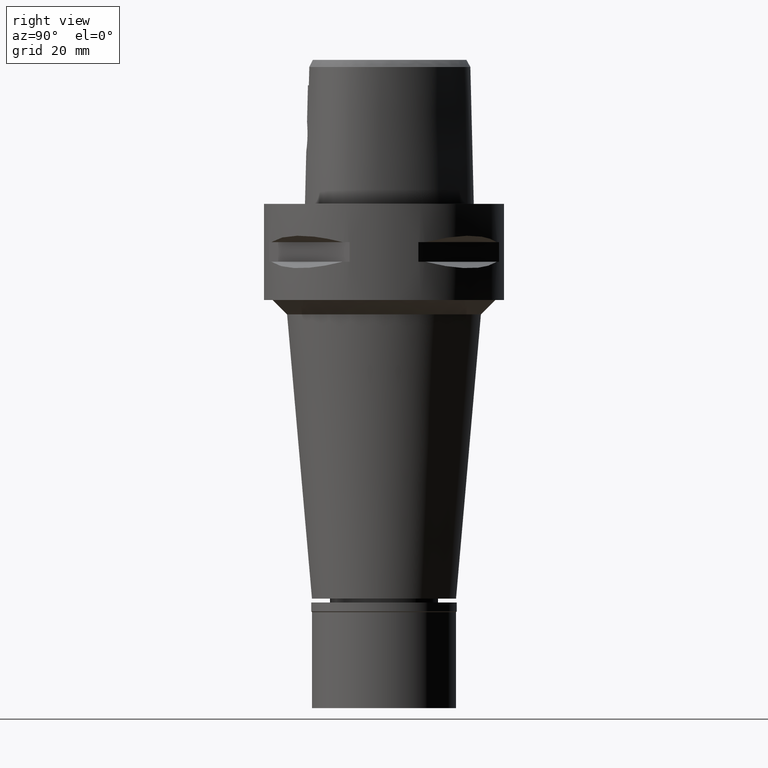
[diagram: clean part render]
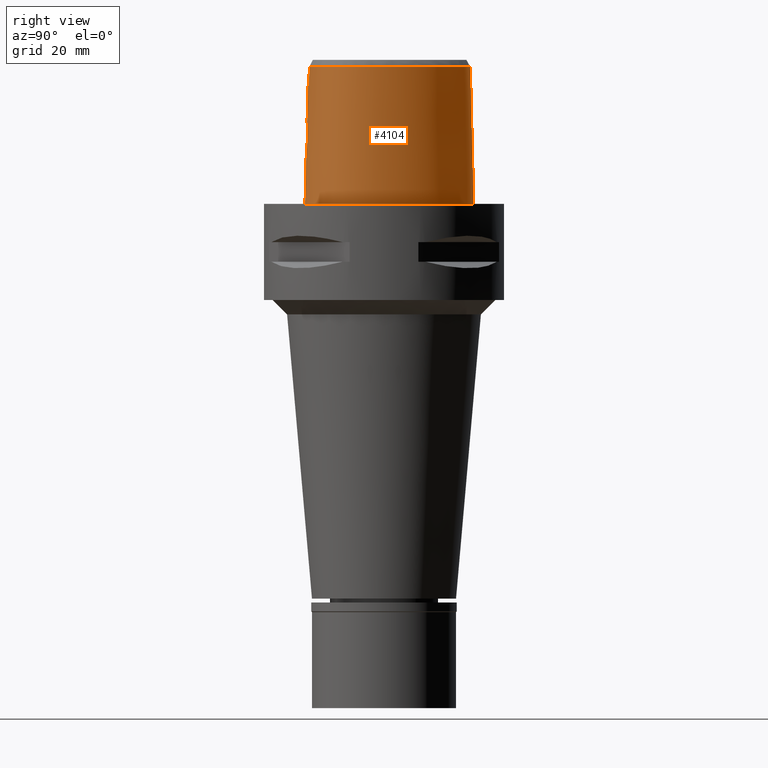
[diagram: same view with one face highlighted and labeled with its STEP entity id]
A machine part, right view. The second image highlights one B-rep face of the part: STEP entity #4104.
In plain terms, the highlighted face is a freeform B-spline surface patch.
Its self-contained STEP definition (entity closure, byte-faithful):
#17 = CARTESIAN_POINT ( 'NONE',  ( 7.523733068098778176, 15.26501041874221798, 28.52071728562186337 ) ) ;
#34 = CARTESIAN_POINT ( 'NONE',  ( 16.01658383235305649, -8.155509186612102113, 28.52071728562186337 ) ) ;
#48 = CARTESIAN_POINT ( 'NONE',  ( 14.38008123442372366, 8.302343771663288408, -1.724618301223194636E-06 ) ) ;
#63 = ORIENTED_EDGE ( 'NONE', *, *, #4113, .T. ) ;
#66 = CARTESIAN_POINT ( 'NONE',  ( 16.47905536661404469, -6.962316254603452492, 28.52071728562186337 ) ) ;
#77 = CARTESIAN_POINT ( 'NONE',  ( 4.728927225346569507, 17.73480472691698395, -1.724618301223194636E-06 ) ) ;
#78 = CARTESIAN_POINT ( 'NONE',  ( 2.030224829794000080E-07, -15.83752876601000281, 24.70000006102999990 ) ) ;
#86 = CARTESIAN_POINT ( 'NONE',  ( 2.223227574825758612, -16.06911398227905252, 11.90960399256272950 ) ) ;
#99 = CARTESIAN_POINT ( 'NONE',  ( 13.50690096153880226, -12.48264651843017958, -1.724618301223194636E-06 ) ) ;
#105 = EDGE_CURVE ( 'NONE', #4385, #2100, #3793, .T. ) ;
#109 = CARTESIAN_POINT ( 'NONE',  ( 2.744096643855138851, -16.00346064512361366, 12.66698413766678399 ) ) ;
#115 = CARTESIAN_POINT ( 'NONE',  ( 7.668807702280000527, 15.44980313097000035, 19.20396166236000113 ) ) ;
#134 = CARTESIAN_POINT ( 'NONE',  ( 2.164021906619612690, -15.96736812113674198, 16.14931344321803408 ) ) ;
#160 = CARTESIAN_POINT ( 'NONE',  ( 2.957688824804170835, -15.96752846870872311, 13.22897551199208266 ) ) ;
#183 = CARTESIAN_POINT ( 'NONE',  ( 3.048883421515427017, -15.94046337244652278, 13.90502257973828826 ) ) ;
#194 = EDGE_CURVE ( 'NONE', #3218, #1189, #847, .T. ) ;
#195 = CARTESIAN_POINT ( 'NONE',  ( -1.060560759004000264, -15.70738087652999759, 29.09114984497000123 ) ) ;
#258 = CARTESIAN_POINT ( 'NONE',  ( 3.213444788215948034, -15.61774735051721308, 25.97357128944999971 ) ) ;
#259 = CARTESIAN_POINT ( 'NONE',  ( 0.7741482008191981068, -16.02257322970520903, 16.98085959781949583 ) ) ;
#271 = CARTESIAN_POINT ( 'NONE',  ( 1.321318946929999960, -16.50155084630999980, -0.5704147028425000654 ) ) ;
#298 = CARTESIAN_POINT ( 'NONE',  ( 16.84071406257000092, -5.352498112783000472, 29.09114984497000123 ) ) ;
#309 = CARTESIAN_POINT ( 'NONE',  ( 3.235096591086000117, -15.64751801257999908, 24.70000006080999810 ) ) ;
#321 = CARTESIAN_POINT ( 'NONE',  ( 11.47659488514999993, 12.46143684857999823, -0.5704147028425000654 ) ) ;
#339 = CARTESIAN_POINT ( 'NONE',  ( 0.7748558813738485318, -16.16821842566323042, 11.04831638025738094 ) ) ;
#347 = CARTESIAN_POINT ( 'NONE',  ( 16.70311416019000106, -7.028822871959999219, 19.20396166236000113 ) ) ;
#371 = CARTESIAN_POINT ( 'NONE',  ( 16.00353252384999792, -8.149703169336001807, 29.09114984497000123 ) ) ;
#392 = CARTESIAN_POINT ( 'NONE',  ( -3.094715185645000153E-11, 17.98202997909999823, 28.52071728569000086 ) ) ;
#397 = EDGE_LOOP ( 'NONE', ( #4863, #63, #4188, #2389, #3815, #3223, #2821, #4850 ) ) ;
#399 = CARTESIAN_POINT ( 'NONE',  ( 13.51574691277999918, -12.49390941291999901, -0.5704147028425000654 ) ) ;
#422 = CARTESIAN_POINT ( 'NONE',  ( -0.5593289285082000406, 18.44521839148999831, 9.316773479760998455 ) ) ;
#442 = CARTESIAN_POINT ( 'NONE',  ( 3.168920890822999770, -15.55911073834000113, 28.52071374672999582 ) ) ;
#453 = CARTESIAN_POINT ( 'NONE',  ( 17.71143739886225532, -3.269218749718620032, -1.724618301223194636E-06 ) ) ;
#464 = CARTESIAN_POINT ( 'NONE',  ( 2.290593162244019432, -16.06186194956425695, 11.98364703425943922 ) ) ;
#470 = CARTESIAN_POINT ( 'NONE',  ( 4.522582258244999487, 17.29581182527999772, 19.20396166236000113 ) ) ;
#480 = CARTESIAN_POINT ( 'NONE',  ( 7.243258786746999801E-11, 18.69499999997999851, 1.586138627847999922E-13 ) ) ;
#490 = CARTESIAN_POINT ( 'NONE',  ( 2.824468722466983994, -15.93300016794371743, 15.15105085638156979 ) ) ;
#514 = CARTESIAN_POINT ( 'NONE',  ( 2.180887052763810452, -15.96648089881371924, 16.13220278528723739 ) ) ;
#519 = CARTESIAN_POINT ( 'NONE',  ( 0.4640361004274000112, 18.23425881035000273, 19.20396166236000113 ) ) ;
#537 = CARTESIAN_POINT ( 'NONE',  ( 1.138812104615271270, -16.15267061231297774, 11.17057442770730802 ) ) ;
#545 = CARTESIAN_POINT ( 'NONE',  ( 2.169052010910569095, -15.77399788591356966, 24.70000016056458847 ) ) ;
#563 = CARTESIAN_POINT ( 'NONE',  ( 3.014162081768897217, -15.95399573205361499, 13.52323755265707383 ) ) ;
#671 = CARTESIAN_POINT ( 'NONE',  ( 8.866858737861999629, -14.81887819209000057, 9.316773479760998455 ) ) ;
#695 = CARTESIAN_POINT ( 'NONE',  ( 17.02224575236000348, -0.3128848874917000145, 19.20396166236000113 ) ) ;
#722 = CARTESIAN_POINT ( 'NONE',  ( 16.94089129480000011, -7.099401458301999313, 9.316773479760998455 ) ) ;
#746 = CARTESIAN_POINT ( 'NONE',  ( 5.009809421125999584, -15.92506881227000193, 9.316773479760998455 ) ) ;
#771 = CARTESIAN_POINT ( 'NONE',  ( 15.25987605312999840, -9.930205345762999514, 19.20396166236000113 ) ) ;
#796 = CARTESIAN_POINT ( 'NONE',  ( 0.4897519513809999725, 18.72964555625999949, -0.5704147028425000654 ) ) ;
#818 = CARTESIAN_POINT ( 'NONE',  ( 15.84228676733495256, 3.460033425849442068, 28.52071728562186337 ) ) ;
#835 = CARTESIAN_POINT ( 'NONE',  ( 2.478737183283747036, -16.03986208745244824, 12.22013516386344989 ) ) ;
#847 = B_SPLINE_CURVE_WITH_KNOTS ( 'NONE', 3,
 ( #2245, #1143, #2665, #3769, #339, #2835, #2069, #3563, #3512, #537, #2465, #1993, #3215, #4373, #4723, #4269, #3592, #1672, #2020, #3945, #2761, #888, #3138, #2358, #86, #464, #1623, #835, #4670, #1237, #934, #109, #4648, #3890, #1288, #3539, #160, #563, #2094, #3614, #1215, #183, #4746, #2814, #3996, #3115, #2738, #4295, #1310, #864, #2385, #3921, #490, #4349, #911, #1643, #3160, #4696, #2042, #1262, #2791, #4323, #2411, #514, #2435, #134, #3967, #3193, #1700, #3662, #3633, #2533, #1743, #2509, #956, #2116, #4441, #1002, #259, #4063, #2489 ),
 .UNSPECIFIED., .F., .F.,
 ( 4, 2, 2, 1, 1, 1, 2, 2, 2, 2, 2, 1, 1, 2, 2, 2, 2, 2, 1, 2, 2, 2, 2, 2, 2, 2, 2, 1, 1, 1, 2, 2, 2, 2, 2, 1, 1, 2, 2, 2, 2, 2, 2, 2, 2, 4 ),
 ( 0.0000000000000000000, 0.06250000000000130451, 0.09375000000000192901, 0.1093750000000021511, 0.1171875000000021788, 0.1210937500000021927, 0.1230468750000022066, 0.1250000000000022204, 0.1875000000000036915, 0.2187500000000043021, 0.2343750000000047740, 0.2421875000000052180, 0.2460937500000055789, 0.2480468750000058009, 0.2500000000000059952, 0.2812500000000057176, 0.3125000000000053846, 0.3437500000000051070, 0.3593750000000049960, 0.3671875000000049960, 0.3750000000000049960, 0.4375000000000041078, 0.4687500000000037192, 0.4843750000000037748, 0.5000000000000037748, 0.5625000000000052180, 0.5937500000000058842, 0.6093750000000062172, 0.6171875000000063283, 0.6210937500000066613, 0.6230468750000065503, 0.6250000000000064393, 0.6875000000000034417, 0.7187500000000012212, 0.7343749999999997780, 0.7421874999999994449, 0.7460937499999987788, 0.7480468749999985567, 0.7499999999999982236, 0.7812499999999991118, 0.7968749999999992228, 0.8124999999999993339, 0.8437499999999995559, 0.8593749999999994449, 0.8749999999999992228, 1.000000000000000000 ),
 .UNSPECIFIED. ) ;
#852 = CARTESIAN_POINT ( 'NONE',  ( 16.66912846085714506, -8.445800798803885456, -1.724618301223194636E-06 ) ) ;
#864 = CARTESIAN_POINT ( 'NONE',  ( 2.852909278454572206, -15.93189406616821202, 15.07915126970500097 ) ) ;
#869 = CARTESIAN_POINT ( 'NONE',  ( 8.702202469522539729, -14.36510984286100445, 28.52071728562186337 ) ) ;
#888 = CARTESIAN_POINT ( 'NONE',  ( 2.130834279646585117, -16.07853149005603655, 11.81777582520703263 ) ) ;
#901 = CARTESIAN_POINT ( 'NONE',  ( -3.094715185645000153E-11, 17.98202997909999823, 28.52071728569000086 ) ) ;
#911 = CARTESIAN_POINT ( 'NONE',  ( 2.759961640973294550, -15.93564958624567929, 15.30749493561481955 ) ) ;
#932 = CARTESIAN_POINT ( 'NONE',  ( 6.782386032392523226E-08, -15.90128720080381797, 22.15000025259135086 ) ) ;
#934 = CARTESIAN_POINT ( 'NONE',  ( 2.709953204679840688, -16.00846021379279449, 12.59958595635182732 ) ) ;
#937 = EDGE_CURVE ( 'NONE', #2296, #1189, #4562, .T. ) ;
#956 = CARTESIAN_POINT ( 'NONE',  ( 1.399412083726095268, -16.00233608542867358, 16.71046994217811488 ) ) ;
#998 = CARTESIAN_POINT ( 'NONE',  ( 0.0000000000000000000, -16.02877864023999877, 17.05000000000000071 ) ) ;
#1002 = CARTESIAN_POINT ( 'NONE',  ( 1.217867162102866496, -16.00861105600193568, 16.79681041045230927 ) ) ;
#1049 = CARTESIAN_POINT ( 'NONE',  ( 4.922186775604999731, -15.43572506689999990, 29.09114984497000123 ) ) ;
#1072 = CARTESIAN_POINT ( 'NONE',  ( 16.46533702557000112, -6.958244285616999925, 29.09114984497000123 ) ) ;
#1100 = CARTESIAN_POINT ( 'NONE',  ( 13.05575605748000001, -11.90823712870999884, 29.09114984497000123 ) ) ;
#1128 = CARTESIAN_POINT ( 'NONE',  ( 13.74710206989000127, 7.936918612611998824, 29.09114984497000123 ) ) ;
#1143 = CARTESIAN_POINT ( 'NONE',  ( 0.1898211197318054044, -16.18126839358999902, 10.94999999999999929 ) ) ;
#1149 = CARTESIAN_POINT ( 'NONE',  ( 13.96223223070999886, 8.061115391332000613, 19.20396166236000113 ) ) ;
#1166 = DIRECTION ( 'NONE',  ( 3.623592351940885255E-12, 0.02499051285796925065, -0.9996876883642689116 ) ) ;
#1189 = VERTEX_POINT ( 'NONE', #3495 ) ;
#1201 = CARTESIAN_POINT ( 'NONE',  ( 1.890839651230999952, 17.83402852997999943, 29.09114984497000123 ) ) ;
#1215 = CARTESIAN_POINT ( 'NONE',  ( 3.044506884776513989, -15.94333381584075227, 13.81108558313460932 ) ) ;
#1220 = CARTESIAN_POINT ( 'NONE',  ( -0.5293535088808000166, 17.95181569761000162, 29.09114984497000123 ) ) ;
#1227 = CARTESIAN_POINT ( 'NONE',  ( 1.683697725074135843, -16.45500004311455200, -1.724618301223194636E-06 ) ) ;
#1237 = CARTESIAN_POINT ( 'NONE',  ( 2.638828814099707376, -16.01860464026678699, 12.46732066279884421 ) ) ;
#1244 = CARTESIAN_POINT ( 'NONE',  ( 4.735056264694001094, 17.74784407944000364, -0.5704147028425000654 ) ) ;
#1262 = CARTESIAN_POINT ( 'NONE',  ( 2.320231428406501095, -15.95909571851455588, 15.98050410814319555 ) ) ;
#1265 = B_SPLINE_CURVE_WITH_KNOTS ( 'NONE', 3,
 ( #1682, #545, #2768, #2841 ),
 .UNSPECIFIED., .F., .F.,
 ( 4, 4 ),
 ( 0.0000000000000000000, 1.000000000000000000 ),
 .UNSPECIFIED. ) ;
#1271 = CARTESIAN_POINT ( 'NONE',  ( 1.893775678554993291, 17.84807068954962972, 28.52071728562186337 ) ) ;
#1288 = CARTESIAN_POINT ( 'NONE',  ( 2.806282367902103836, -15.99380854387472084, 12.80500890572250050 ) ) ;
#1310 = CARTESIAN_POINT ( 'NONE',  ( 2.883981873338863799, -15.93080840504316420, 14.99485968243827116 ) ) ;
#1320 = FACE_OUTER_BOUND ( 'NONE', #397, .T. ) ;
#1356 = CARTESIAN_POINT ( 'NONE',  ( 2.030224829794000080E-07, -15.83752876601000281, 24.70000006102999990 ) ) ;
#1396 = CARTESIAN_POINT ( 'NONE',  ( -1.070056060234000128, -15.95437365744999880, 19.20396166236000113 ) ) ;
#1422 = CARTESIAN_POINT ( 'NONE',  ( 15.05961623282999895, -9.784614131452000763, 29.09114984497000123 ) ) ;
#1447 = VERTEX_POINT ( 'NONE', #4477 ) ;
#1449 = CARTESIAN_POINT ( 'NONE',  ( 16.68217932135000225, -8.451606616778001069, -0.5704147028425000654 ) ) ;
#1475 = CARTESIAN_POINT ( 'NONE',  ( 11.28662493320999971, 12.30111480653000022, 9.316773479760998455 ) ) ;
#1489 = B_SPLINE_CURVE_WITH_KNOTS ( 'NONE', 3,
 ( #2722, #3853, #1271, #1950, #17, #4252, #2025, #818, #3468, #1553, #4603, #66, #34, #2344, #3143, #1650, #4302, #1606, #869, #3872, #2000, #442 ),
 .UNSPECIFIED., .F., .F.,
 ( 4, 1, 1, 1, 1, 1, 1, 1, 1, 1, 1, 1, 1, 1, 1, 1, 1, 1, 1, 4 ),
 ( 0.0000000000000000000, 0.04404152929334107652, 0.08808305858551931933, 0.1761661171698760686, 0.2642491757542327901, 0.3523322343385895117, 0.4404152929230518709, 0.5284983515074086480, 0.5725398807995869532, 0.6165814100917652585, 0.6606229393839436748, 0.6826437040300328274, 0.7046644686762276732, 0.7266852333222112437, 0.7487059979683002853, 0.7927475272605843948, 0.8367890565527628111, 0.8808305858448354231, 0.9689136444292978378, 1.000000000000000000 ),
 .UNSPECIFIED. ) ;
#1502 = CARTESIAN_POINT ( 'NONE',  ( 16.29641055957999995, 3.623925452662000168, 9.316773479760998455 ) ) ;
#1532 = CARTESIAN_POINT ( 'NONE',  ( 1.309813751699000051, -16.25411916852999994, 9.316773479760998455 ) ) ;
#1553 = CARTESIAN_POINT ( 'NONE',  ( 16.99625257117350330, -3.273868232427241676, 28.52071728562186337 ) ) ;
#1554 = B_SPLINE_CURVE_WITH_KNOTS ( 'NONE', 3,
 ( #1957, #1227, #2708, #4237, #2329, #99, #3860, #3478, #3957, #852, #4284, #3880, #453, #3910, #2032, #48, #1634, #1982, #77, #1615, #2751, #480 ),
 .UNSPECIFIED., .F., .F.,
 ( 4, 1, 1, 1, 1, 1, 1, 1, 1, 1, 1, 1, 1, 1, 1, 1, 1, 1, 1, 4 ),
 ( 0.0000000000000000000, 0.08333333333350000094, 0.1666666666668000230, 0.2083333333333000081, 0.2499999999998999967, 0.2916666666666000163, 0.3124999999998999689, 0.3333333333331000015, 0.3541666666665000407, 0.3749999999997999933, 0.4166666666664000096, 0.4583333333330000259, 0.4999999999995999866, 0.5833333333328000192, 0.6666666666660999718, 0.7499999999993000044, 0.8333333333325000369, 0.9166666666657000695, 0.9583333333322999747, 1.000000000000000000 ),
 .UNSPECIFIED. ) ;
#1580 = CARTESIAN_POINT ( 'NONE',  ( -0.5443412186945000286, 18.19851704455000174, 19.20396166236000113 ) ) ;
#1606 = CARTESIAN_POINT ( 'NONE',  ( 11.33338046474217542, -13.08225241901945068, 28.52071728562186337 ) ) ;
#1615 = CARTESIAN_POINT ( 'NONE',  ( 2.040572366544298522, 18.55015629245400888, -1.724618301223194636E-06 ) ) ;
#1623 = CARTESIAN_POINT ( 'NONE',  ( 2.417729193041641800, -16.04731727844026068, 12.13798983179896496 ) ) ;
#1628 = CARTESIAN_POINT ( 'NONE',  ( 7.822764751994001564, 15.64591005858999928, 9.316773479760998455 ) ) ;
#1634 = CARTESIAN_POINT ( 'NONE',  ( 11.46563511336675667, 12.45218752796509243, -1.724618301223194636E-06 ) ) ;
#1643 = CARTESIAN_POINT ( 'NONE',  ( 2.681016418395048895, -15.93974068711152547, 15.46783011061541124 ) ) ;
#1650 = CARTESIAN_POINT ( 'NONE',  ( 14.26907046692866565, -10.79012245165629835, 28.52071728562186337 ) ) ;
#1672 = CARTESIAN_POINT ( 'NONE',  ( 1.979050802164313616, -16.09313883417900826, 11.67852903116636298 ) ) ;
#1682 = CARTESIAN_POINT ( 'NONE',  ( 3.235096591086000117, -15.64751801257999908, 24.70000006080999810 ) ) ;
#1694 = CARTESIAN_POINT ( 'NONE',  ( -2.152758532514000202E-12, -16.18126839358999902, 10.94999999999999929 ) ) ;
#1700 = CARTESIAN_POINT ( 'NONE',  ( 1.898958778535287273, -15.98067541706732086, 16.38724889510308458 ) ) ;
#1743 = CARTESIAN_POINT ( 'NONE',  ( 1.616099766049513997, -15.99381337938742043, 16.58846643699800083 ) ) ;
#1781 = CARTESIAN_POINT ( 'NONE',  ( -0.7201291708170999284, -16.21519147593999932, 9.316773479760998455 ) ) ;
#1790 = CARTESIAN_POINT ( 'NONE',  ( 3.168920890822999770, -15.55911073834000113, 28.52071374672999582 ) ) ;
#1828 = CARTESIAN_POINT ( 'NONE',  ( 14.79871907724000124, -11.29217324072999951, -0.5704147028425000654 ) ) ;
#1839 = CARTESIAN_POINT ( 'NONE',  ( 3.191384142201736829, -15.58827398948734633, 27.24714251809000132 ) ) ;
#1853 = CARTESIAN_POINT ( 'NONE',  ( 8.697311531623999059, -14.35163114059999856, 29.09114984497000123 ) ) ;
#1874 = CARTESIAN_POINT ( 'NONE',  ( 17.72574106026000251, -3.269125760292999949, -0.5704147028425000654 ) ) ;
#1901 = CARTESIAN_POINT ( 'NONE',  ( 15.82879750701999733, 3.455165188926000219, 29.09114984497000123 ) ) ;
#1928 = CARTESIAN_POINT ( 'NONE',  ( 11.57144729116999926, -13.50085884013999937, 9.316773479760998455 ) ) ;
#1944 = EDGE_CURVE ( 'NONE', #3980, #1949, #3346, .T. ) ;
#1949 = VERTEX_POINT ( 'NONE', #2558 ) ;
#1950 = CARTESIAN_POINT ( 'NONE',  ( 4.422474504765952830, 17.08283549832817982, 28.52071728562186337 ) ) ;
#1957 = CARTESIAN_POINT ( 'NONE',  ( -1.728596458623000130E-11, -16.45500000000000185, 1.597610932435999867E-13 ) ) ;
#1970 = CARTESIAN_POINT ( 'NONE',  ( 2.043508293087999750, 18.56419797000000216, -0.5704147028425000654 ) ) ;
#1982 = CARTESIAN_POINT ( 'NONE',  ( 7.967839691079166897, 15.83070315920801008, -1.724618301223194636E-06 ) ) ;
#1993 = CARTESIAN_POINT ( 'NONE',  ( 1.158353828547513453, -16.15167258786865645, 11.17852165137640164 ) ) ;
#1997 = VECTOR ( 'NONE', #3479, 1000.000000000000114 ) ;
#2000 = CARTESIAN_POINT ( 'NONE',  ( 3.738627708318999598, -15.49270856215482084, 28.52071728562186692 ) ) ;
#2020 = CARTESIAN_POINT ( 'NONE',  ( 2.044225401078200832, -16.08701963945068769, 11.73626748626128347 ) ) ;
#2025 = CARTESIAN_POINT ( 'NONE',  ( 13.75951381385227990, 7.944084035686747924, 28.52071728562186337 ) ) ;
#2032 = CARTESIAN_POINT ( 'NONE',  ( 16.51672828858815834, 3.703437514718491030, -1.724618301223194636E-06 ) ) ;
#2042 = CARTESIAN_POINT ( 'NONE',  ( 2.356615372638827477, -15.95714923954085940, 15.93698914121856625 ) ) ;
#2048 = CARTESIAN_POINT ( 'NONE',  ( 0.4511781749506000305, 17.98656543738999858, 29.09114984497000123 ) ) ;
#2069 = CARTESIAN_POINT ( 'NONE',  ( 0.9939297242848635916, -16.15959612542590662, 11.11569146158246291 ) ) ;
#2094 = CARTESIAN_POINT ( 'NONE',  ( 3.027798455715707604, -15.95003164277662400, 13.62032956274717144 ) ) ;
#2100 = VERTEX_POINT ( 'NONE', #4516 ) ;
#2109 = CARTESIAN_POINT ( 'NONE',  ( 3.235096591086000117, -15.64751801257999908, 24.70000006080999810 ) ) ;
#2116 = CARTESIAN_POINT ( 'NONE',  ( 1.354452607727718361, -16.00396228356806816, 16.73322745257438271 ) ) ;
#2198 = CARTESIAN_POINT ( 'NONE',  ( 13.36241662768000005, -12.29868531818000044, 9.316773479760998455 ) ) ;
#2225 = CARTESIAN_POINT ( 'NONE',  ( 16.53021708585999860, 3.708305584531000232, -0.5704147028425000654 ) ) ;
#2245 = CARTESIAN_POINT ( 'NONE',  ( -2.152758532514000202E-12, -16.18126839358999902, 10.94999999999999929 ) ) ;
#2250 = CARTESIAN_POINT ( 'NONE',  ( 17.26695536895999794, -0.2694874701691999941, 9.316773479760998455 ) ) ;
#2251 = EDGE_CURVE ( 'NONE', #3218, #1447, #3151, .T. ) ;
#2273 = CARTESIAN_POINT ( 'NONE',  ( 16.00394172253000136, -9.239880061256000587, 9.316773479760998455 ) ) ;
#2296 = VERTEX_POINT ( 'NONE', #78 ) ;
#2301 = CARTESIAN_POINT ( 'NONE',  ( 16.21839714803000021, -9.363695959260001089, -0.5704147028425000654 ) ) ;
#2322 = CARTESIAN_POINT ( 'NONE',  ( -0.3630721077461999680, 18.20950138894999881, 19.20396166236000113 ) ) ;
#2329 = CARTESIAN_POINT ( 'NONE',  ( 11.68694518722046105, -13.70394535008871451, -1.724618301223194636E-06 ) ) ;
#2344 = CARTESIAN_POINT ( 'NONE',  ( 15.58740368722602021, -8.999391713747405319, 28.52071728562186337 ) ) ;
#2358 = CARTESIAN_POINT ( 'NONE',  ( 2.147962331140138126, -16.07679769526339086, 11.83463701146487068 ) ) ;
#2365 = CARTESIAN_POINT ( 'NONE',  ( -0.3829342213874999956, 18.70352949266999687, -0.5704147028425000654 ) ) ;
#2385 = CARTESIAN_POINT ( 'NONE',  ( 2.836520581861626145, -15.93251973351802242, 15.12113420123065488 ) ) ;
#2389 = ORIENTED_EDGE ( 'NONE', *, *, #2516, .T. ) ;
#2411 = CARTESIAN_POINT ( 'NONE',  ( 2.196663950529419207, -15.96564993910013719, 16.11602529263613093 ) ) ;
#2435 = CARTESIAN_POINT ( 'NONE',  ( 2.170299400654048139, -15.96703807926082952, 16.14297866672073312 ) ) ;
#2465 = CARTESIAN_POINT ( 'NONE',  ( 1.150837130458274737, -16.15205889506641412, 11.17544410961287404 ) ) ;
#2489 = CARTESIAN_POINT ( 'NONE',  ( 0.0000000000000000000, -16.02877864023999877, 17.05000000000000071 ) ) ;
#2509 = CARTESIAN_POINT ( 'NONE',  ( 1.531589067142498983, -15.99732691922906724, 16.63945844436470622 ) ) ;
#2516 = EDGE_CURVE ( 'NONE', #3980, #2296, #1265, .T. ) ;
#2533 = CARTESIAN_POINT ( 'NONE',  ( 1.737183591012293693, -15.98828192606207743, 16.50739953107601821 ) ) ;
#2558 = CARTESIAN_POINT ( 'NONE',  ( 3.168920890822999770, -15.55911073834000113, 28.52071374672999582 ) ) ;
#2570 = CARTESIAN_POINT ( 'NONE',  ( 16.45596372219000258, -8.350972134297000693, 9.316773479760998455 ) ) ;
#2594 = CARTESIAN_POINT ( 'NONE',  ( 17.08644817415000006, -5.387673897164000358, 19.20396166236000113 ) ) ;
#2624 = CARTESIAN_POINT ( 'NONE',  ( 14.43869627147000045, -10.95090974979000009, 19.20396166236000113 ) ) ;
#2649 = CARTESIAN_POINT ( 'NONE',  ( 14.25868486857999962, -10.78027800433000039, 29.09114984497000123 ) ) ;
#2665 = CARTESIAN_POINT ( 'NONE',  ( 0.3842297570299209597, -16.17878268541346998, 10.96777226348767620 ) ) ;
#2672 = CARTESIAN_POINT ( 'NONE',  ( 16.77753613575000102, -0.3562823048141000037, 29.09114984497000123 ) ) ;
#2708 = CARTESIAN_POINT ( 'NONE',  ( 5.051093175214912634, -16.15562504267512978, -1.724618301223194636E-06 ) ) ;
#2722 = CARTESIAN_POINT ( 'NONE',  ( -3.094715185645000153E-11, 17.98202997909999823, 28.52071728569000086 ) ) ;
#2738 = CARTESIAN_POINT ( 'NONE',  ( 2.951306861662649883, -15.92924742299004315, 14.77626636585400988 ) ) ;
#2751 = CARTESIAN_POINT ( 'NONE',  ( 0.6801907889400528040, 18.69500004310651775, -1.724618301223194636E-06 ) ) ;
#2761 = CARTESIAN_POINT ( 'NONE',  ( 2.114644142903215673, -16.08015782783975922, 11.80200641014884155 ) ) ;
#2768 = CARTESIAN_POINT ( 'NONE',  ( 1.084489111476455214, -15.83754148653920524, 24.70000016056458492 ) ) ;
#2769 = CARTESIAN_POINT ( 'NONE',  ( 7.514850652565000289, 15.25369620335999876, 29.09114984497000123 ) ) ;
#2791 = CARTESIAN_POINT ( 'NONE',  ( 2.262444582314399266, -15.96216938760132820, 16.04565077979858856 ) ) ;
#2797 = CARTESIAN_POINT ( 'NONE',  ( -0.3531410509255000219, 17.96248733710000067, 29.09114984497000123 ) ) ;
#2814 = CARTESIAN_POINT ( 'NONE',  ( 3.050149896193001364, -15.93316336324772742, 14.18941404704229647 ) ) ;
#2821 = ORIENTED_EDGE ( 'NONE', *, *, #2251, .T. ) ;
#2835 = CARTESIAN_POINT ( 'NONE',  ( 0.9209982704612814652, -16.16262558226603829, 11.09193420934180629 ) ) ;
#2841 = CARTESIAN_POINT ( 'NONE',  ( 2.030224829794000080E-07, -15.83752876601000281, 24.70000006102999990 ) ) ;
#2918 = CARTESIAN_POINT ( 'NONE',  ( -0.7074880707862999385, -15.72098110764999923, 29.09114984497000123 ) ) ;
#2946 = CARTESIAN_POINT ( 'NONE',  ( 8.951632340980999913, -15.05250171782999935, -0.5704147028425000654 ) ) ;
#2961 = CARTESIAN_POINT ( 'NONE',  ( -2.152758532514000202E-12, -16.18126839358999902, 10.94999999999999929 ) ) ;
#2970 = CARTESIAN_POINT ( 'NONE',  ( 14.61870767434999863, -11.12154149526000069, 9.316773479760998455 ) ) ;
#2993 = CARTESIAN_POINT ( 'NONE',  ( 1.286803361236000143, -15.75925581299000200, 29.09114984497000123 ) ) ;
#3021 = CARTESIAN_POINT ( 'NONE',  ( 8.782085134742999344, -14.58525466633999912, 19.20396166236000113 ) ) ;
#3049 = CARTESIAN_POINT ( 'NONE',  ( 14.17736239151999911, 8.185312170052000624, 9.316773479760998455 ) ) ;
#3097 = CARTESIAN_POINT ( 'NONE',  ( 1.992618745801999935, 18.32080815666000007, 9.316773479760998455 ) ) ;
#3115 = CARTESIAN_POINT ( 'NONE',  ( 2.975249651912844406, -15.92914271478721844, 14.67846616982677332 ) ) ;
#3120 = CARTESIAN_POINT ( 'NONE',  ( -0.5743166383218999416, 18.69191973842999843, -0.5704147028425000654 ) ) ;
#3138 = CARTESIAN_POINT ( 'NONE',  ( 2.141618861872311097, -16.07744231414372749, 11.82835874812607102 ) ) ;
#3143 = CARTESIAN_POINT ( 'NONE',  ( 15.07117004567531815, -9.793013887526639039, 28.52071728562186337 ) ) ;
#3151 = LINE ( 'NONE', #1694, #1997 ) ;
#3160 = CARTESIAN_POINT ( 'NONE',  ( 2.520317714005584797, -15.94834054842959503, 15.72060082174887086 ) ) ;
#3193 = CARTESIAN_POINT ( 'NONE',  ( 2.014841840659068239, -15.97504399877427339, 16.29192479722134124 ) ) ;
#3215 = CARTESIAN_POINT ( 'NONE',  ( 1.306758668672085788, -16.14399373876817378, 11.23972581488814093 ) ) ;
#3218 = VERTEX_POINT ( 'NONE', #2961 ) ;
#3223 = ORIENTED_EDGE ( 'NONE', *, *, #194, .F. ) ;
#3295 = CARTESIAN_POINT ( 'NONE',  ( -0.7138086208017000445, -15.96808629178999794, 19.20396166236000113 ) ) ;
#3302 = B_SPLINE_SURFACE_WITH_KNOTS ( 'NONE', 3, 3, ( 
 ( #4010, #3624, #1396, #195 ),
 ( #3676, #1781, #3295, #2918 ),
 ( #271, #1532, #4176, #2993 ),
 ( #4581, #746, #4505, #1049 ),
 ( #2946, #671, #3021, #1853 ),
 ( #4906, #1928, #3449, #4482 ),
 ( #399, #2198, #4198, #1100 ),
 ( #1828, #2970, #2624, #2649 ),
 ( #3777, #3350, #771, #1422 ),
 ( #2301, #2273, #3799, #4156 ),
 ( #1449, #2570, #3831, #371 ),
 ( #4883, #722, #347, #1072 ),
 ( #3724, #4097, #2594, #298 ),
 ( #1874, #4123, #3397, #3375 ),
 ( #4931, #2250, #695, #2672 ),
 ( #2225, #1502, #4559, #1901 ),
 ( #3751, #3049, #1149, #1128 ),
 ( #321, #1475, #4529, #3422 ),
 ( #4958, #1628, #115, #2769 ),
 ( #1244, #4628, #470, #4704 ),
 ( #1970, #3097, #4228, #1201 ),
 ( #796, #3493, #519, #2048 ),
 ( #2365, #3950, #2322, #2797 ),
 ( #3120, #422, #1580, #1220 ) ),
 .UNSPECIFIED., .F., .F., .F.,
 ( 4, 1, 1, 1, 1, 1, 1, 1, 1, 1, 1, 1, 1, 1, 1, 1, 1, 1, 1, 1, 1, 4 ),
 ( 4, 4 ),
 ( -0.01796851319148999940, 0.0000000000000000000, 0.08333333333350000094, 0.1666666666668000230, 0.2083333333333000081, 0.2499999999998999967, 0.2916666666666000163, 0.3124999999998999689, 0.3333333333331000015, 0.3541666666665000407, 0.3749999999997999933, 0.4166666666664000096, 0.4583333333330000259, 0.4999999999995999866, 0.5833333333328000192, 0.6666666666660999718, 0.7499999999993000044, 0.8333333333325000369, 0.9166666666657000695, 0.9583333333322999747, 1.000000000000000000, 1.011711214084999977 ),
 ( 9.257766948878000256E-10, 0.9999999527853000725 ),
 .UNSPECIFIED. ) ;
#3346 = B_SPLINE_CURVE_WITH_KNOTS ( 'NONE', 3,
 ( #309, #258, #1839, #1790 ),
 .UNSPECIFIED., .F., .F.,
 ( 4, 4 ),
 ( 0.0000000000000000000, 1.000000000000000000 ),
 .UNSPECIFIED. ) ;
#3350 = CARTESIAN_POINT ( 'NONE',  ( 15.46013587342999962, -10.07579656006999791, 9.316773479760998455 ) ) ;
#3375 = CARTESIAN_POINT ( 'NONE',  ( 16.98194841875999828, -3.273961225045000312, 29.09114984497000123 ) ) ;
#3397 = CARTESIAN_POINT ( 'NONE',  ( 17.22987929925999850, -3.272349403461000339, 19.20396166236000113 ) ) ;
#3422 = CARTESIAN_POINT ( 'NONE',  ( 10.90668502931999839, 11.98047072241000066, 29.09114984497000123 ) ) ;
#3449 = CARTESIAN_POINT ( 'NONE',  ( 11.44887811804999878, -13.28533850214000012, 19.20396166236000113 ) ) ;
#3468 = CARTESIAN_POINT ( 'NONE',  ( 16.79165444019831099, -0.3537785292840804341, 28.52071728562186337 ) ) ;
#3478 = CARTESIAN_POINT ( 'NONE',  ( 15.64884227749008261, -10.21298830665158697, -1.724618301223194636E-06 ) ) ;
#3479 = DIRECTION ( 'NONE',  ( -1.381596326697966516E-12, -0.02499051295371941192, -0.9996876883618752707 ) ) ;
#3493 = CARTESIAN_POINT ( 'NONE',  ( 0.4768940259041999918, 18.48195218331000333, 9.316773479760998455 ) ) ;
#3495 = CARTESIAN_POINT ( 'NONE',  ( 0.0000000000000000000, -16.02877864023999877, 17.05000000000000071 ) ) ;
#3512 = CARTESIAN_POINT ( 'NONE',  ( 1.120763508486151139, -16.15358090583465511, 11.16333240776555868 ) ) ;
#3539 = CARTESIAN_POINT ( 'NONE',  ( 2.899217746531570938, -15.97873758491097362, 13.02871175161756234 ) ) ;
#3563 = CARTESIAN_POINT ( 'NONE',  ( 1.078575942913221120, -16.15565394761468809, 11.14687127074699724 ) ) ;
#3592 = CARTESIAN_POINT ( 'NONE',  ( 1.935527014336482443, -16.09705987419004458, 11.64218429701113422 ) ) ;
#3611 = CARTESIAN_POINT ( 'NONE',  ( 6.797909984712326668E-08, -15.96503292052290846, 19.60000012629567578 ) ) ;
#3614 = CARTESIAN_POINT ( 'NONE',  ( 3.041209740384549054, -15.94490574327321220, 13.76368115324908281 ) ) ;
#3624 = CARTESIAN_POINT ( 'NONE',  ( -1.079551361465000081, -16.20136643836999824, 9.316773479760998455 ) ) ;
#3633 = CARTESIAN_POINT ( 'NONE',  ( 1.779262221764184249, -15.98633376436653464, 16.47774649146145620 ) ) ;
#3662 = CARTESIAN_POINT ( 'NONE',  ( 1.859549321997238103, -15.98255794229956983, 16.41807320997656916 ) ) ;
#3676 = CARTESIAN_POINT ( 'NONE',  ( -0.7264497208325000344, -16.46229666007999981, -0.5704147028425000654 ) ) ;
#3724 = CARTESIAN_POINT ( 'NONE',  ( 17.57791639730999833, -5.458025465925000042, -0.5704147028425000654 ) ) ;
#3751 = CARTESIAN_POINT ( 'NONE',  ( 14.39249255233000113, 8.309508948772000636, -0.5704147028425000654 ) ) ;
#3769 = CARTESIAN_POINT ( 'NONE',  ( 0.6770584128692437309, -16.17132556088388995, 11.02443681068130132 ) ) ;
#3777 = CARTESIAN_POINT ( 'NONE',  ( 15.66039569372999729, -10.22138777439000101, -0.5704147028425000654 ) ) ;
#3793 = LINE ( 'NONE', #392, #3830 ) ;
#3799 = CARTESIAN_POINT ( 'NONE',  ( 15.78948629702000162, -9.116064163251998309, 19.20396166236000113 ) ) ;
#3815 = ORIENTED_EDGE ( 'NONE', *, *, #937, .T. ) ;
#3830 = VECTOR ( 'NONE', #1166, 1000.000000000000227 ) ;
#3831 = CARTESIAN_POINT ( 'NONE',  ( 16.22974812302000203, -8.250337651817000406, 19.20396166236000113 ) ) ;
#3853 = CARTESIAN_POINT ( 'NONE',  ( 0.6295828025428494845, 17.98202997637701017, 28.52071728562186337 ) ) ;
#3860 = CARTESIAN_POINT ( 'NONE',  ( 14.78833383539567592, -11.28232913133149751, -1.724618301223194636E-06 ) ) ;
#3872 = CARTESIAN_POINT ( 'NONE',  ( 5.902447799197765299, -15.16907841529602763, 28.52071728562186337 ) ) ;
#3880 = CARTESIAN_POINT ( 'NONE',  ( 17.56373947219753262, -5.455996099884928618, -1.724618301223194636E-06 ) ) ;
#3890 = CARTESIAN_POINT ( 'NONE',  ( 2.796681338619850798, -15.99533385695051457, 12.78273984513788264 ) ) ;
#3910 = CARTESIAN_POINT ( 'NONE',  ( 17.49754716575788294, -0.2285937424301268950, -1.724618301223194636E-06 ) ) ;
#3921 = CARTESIAN_POINT ( 'NONE',  ( 2.829313881745510795, -15.93280562740808470, 15.13908937170582725 ) ) ;
#3945 = CARTESIAN_POINT ( 'NONE',  ( 2.076784380862244817, -16.08390063340858944, 11.76594178764442944 ) ) ;
#3950 = CARTESIAN_POINT ( 'NONE',  ( -0.3730031645668999696, 18.45651544081000139, 9.316773479760998455 ) ) ;
#3957 = CARTESIAN_POINT ( 'NONE',  ( 16.20602475704312795, -9.356552755972312951, -1.724618301223194636E-06 ) ) ;
#3967 = CARTESIAN_POINT ( 'NONE',  ( 2.088968113521979753, -15.97131126311717253, 16.22457167555463542 ) ) ;
#3980 = VERTEX_POINT ( 'NONE', #2109 ) ;
#3996 = CARTESIAN_POINT ( 'NONE',  ( 3.032153927794994708, -15.93034332000362419, 14.38503233290859384 ) ) ;
#4010 = CARTESIAN_POINT ( 'NONE',  ( -1.089046662695999812, -16.44835921928000033, -0.5704147028425000654 ) ) ;
#4063 = CARTESIAN_POINT ( 'NONE',  ( 0.3724840145390410084, -16.02877864023999521, 17.04999999999999005 ) ) ;
#4097 = CARTESIAN_POINT ( 'NONE',  ( 17.33218228572999919, -5.422849681545000244, 9.316773479760998455 ) ) ;
#4104 = ADVANCED_FACE ( 'NONE', ( #1320 ), #3302, .T. ) ;
#4113 = EDGE_CURVE ( 'NONE', #4385, #1949, #1489, .T. ) ;
#4123 = CARTESIAN_POINT ( 'NONE',  ( 17.47781017975999873, -3.270737581876999922, 9.316773479760998455 ) ) ;
#4156 = CARTESIAN_POINT ( 'NONE',  ( 15.57503087151999921, -8.992248265247999583, 29.09114984497000123 ) ) ;
#4176 = CARTESIAN_POINT ( 'NONE',  ( 1.298308556466999830, -16.00668749076000097, 19.20396166236000113 ) ) ;
#4188 = ORIENTED_EDGE ( 'NONE', *, *, #1944, .F. ) ;
#4198 = CARTESIAN_POINT ( 'NONE',  ( 13.20908634258000092, -12.10346122345000097, 19.20396166236000113 ) ) ;
#4228 = CARTESIAN_POINT ( 'NONE',  ( 1.941729198516999988, 18.07741834332000153, 19.20396166236000113 ) ) ;
#4237 = CARTESIAN_POINT ( 'NONE',  ( 8.946741570972696067, -15.03902347824969432, -1.724618301223194636E-06 ) ) ;
#4252 = CARTESIAN_POINT ( 'NONE',  ( 10.91764517733003359, 11.98972036053594081, 28.52071728562186337 ) ) ;
#4269 = CARTESIAN_POINT ( 'NONE',  ( 1.805376232599709585, -16.10834772479967469, 11.53923680360894188 ) ) ;
#4284 = CARTESIAN_POINT ( 'NONE',  ( 17.16495055928269053, -7.165908215436206596, -1.724618301223194636E-06 ) ) ;
#4295 = CARTESIAN_POINT ( 'NONE',  ( 2.907704111751978182, -15.93016185020671927, 14.92213459652805341 ) ) ;
#4302 = CARTESIAN_POINT ( 'NONE',  ( 13.06460231238480851, -11.91950040983220305, 28.52071728562186337 ) ) ;
#4323 = CARTESIAN_POINT ( 'NONE',  ( 2.232748692361818943, -15.96374470980125793, 16.07819212816552934 ) ) ;
#4349 = CARTESIAN_POINT ( 'NONE',  ( 2.821425036078583748, -15.93312409536605934, 15.15848376097702577 ) ) ;
#4373 = CARTESIAN_POINT ( 'NONE',  ( 1.466707760593531695, -16.13401281180600577, 11.31839107166332958 ) ) ;
#4385 = VERTEX_POINT ( 'NONE', #901 ) ;
#4441 = CARTESIAN_POINT ( 'NONE',  ( 1.262794661676007069, -16.00712763199256727, 16.77676499123158038 ) ) ;
#4457 = EDGE_CURVE ( 'NONE', #1447, #2100, #1554, .T. ) ;
#4477 = CARTESIAN_POINT ( 'NONE',  ( -1.728596458623000130E-11, -16.45500000000000185, 1.597610932435999867E-13 ) ) ;
#4482 = CARTESIAN_POINT ( 'NONE',  ( 11.32630894493000007, -13.06981816412999997, 29.09114984497000123 ) ) ;
#4505 = CARTESIAN_POINT ( 'NONE',  ( 4.965998098364999613, -15.68039693957999958, 19.20396166236000113 ) ) ;
#4516 = CARTESIAN_POINT ( 'NONE',  ( 7.243258786746999801E-11, 18.69499999997999851, 1.586138627847999922E-13 ) ) ;
#4529 = CARTESIAN_POINT ( 'NONE',  ( 11.09665498126000216, 12.14079276446999955, 19.20396166236000113 ) ) ;
#4559 = CARTESIAN_POINT ( 'NONE',  ( 16.06260403329999775, 3.539545320793999750, 19.20396166236000113 ) ) ;
#4562 = B_SPLINE_CURVE_WITH_KNOTS ( 'NONE', 3,
 ( #1356, #932, #3611, #998 ),
 .UNSPECIFIED., .F., .F.,
 ( 4, 4 ),
 ( 0.0000000000000000000, 1.000000000000000000 ),
 .UNSPECIFIED. ) ;
#4581 = CARTESIAN_POINT ( 'NONE',  ( 5.053620743885999467, -16.16974068496000072, -0.5704147028425000654 ) ) ;
#4603 = CARTESIAN_POINT ( 'NONE',  ( 16.85489147434762458, -5.354527548487159727, 28.52071728562186337 ) ) ;
#4628 = CARTESIAN_POINT ( 'NONE',  ( 4.628819261470000335, 17.52182795235999890, 9.316773479760998455 ) ) ;
#4648 = CARTESIAN_POINT ( 'NONE',  ( 2.775961287969037627, -15.99857004330619503, 12.73620107529055190 ) ) ;
#4670 = CARTESIAN_POINT ( 'NONE',  ( 2.587629427716053421, -16.02556131009697893, 12.38252332210732654 ) ) ;
#4696 = CARTESIAN_POINT ( 'NONE',  ( 2.459696765391549356, -15.95161770387216649, 15.80683248070969071 ) ) ;
#4704 = CARTESIAN_POINT ( 'NONE',  ( 4.416345255021000504, 17.06979569819000275, 29.09114984497000123 ) ) ;
#4723 = CARTESIAN_POINT ( 'NONE',  ( 1.719191830029741741, -16.11523926597476475, 11.47872671524107879 ) ) ;
#4746 = CARTESIAN_POINT ( 'NONE',  ( 3.049961347112721377, -15.93921296701098278, 13.94964838113524230 ) ) ;
#4850 = ORIENTED_EDGE ( 'NONE', *, *, #4457, .T. ) ;
#4863 = ORIENTED_EDGE ( 'NONE', *, *, #105, .F. ) ;
#4883 = CARTESIAN_POINT ( 'NONE',  ( 17.17866842942000005, -7.169980044644999495, -0.5704147028425000654 ) ) ;
#4906 = CARTESIAN_POINT ( 'NONE',  ( 11.69401646428999975, -13.71637917814999952, -0.5704147028425000654 ) ) ;
#4931 = CARTESIAN_POINT ( 'NONE',  ( 17.51166498557000040, -0.2260900528467000015, -0.5704147028425000654 ) ) ;
#4958 = CARTESIAN_POINT ( 'NONE',  ( 7.976721801707999049, 15.84201698621000354, -0.5704147028425000654 ) ) ;